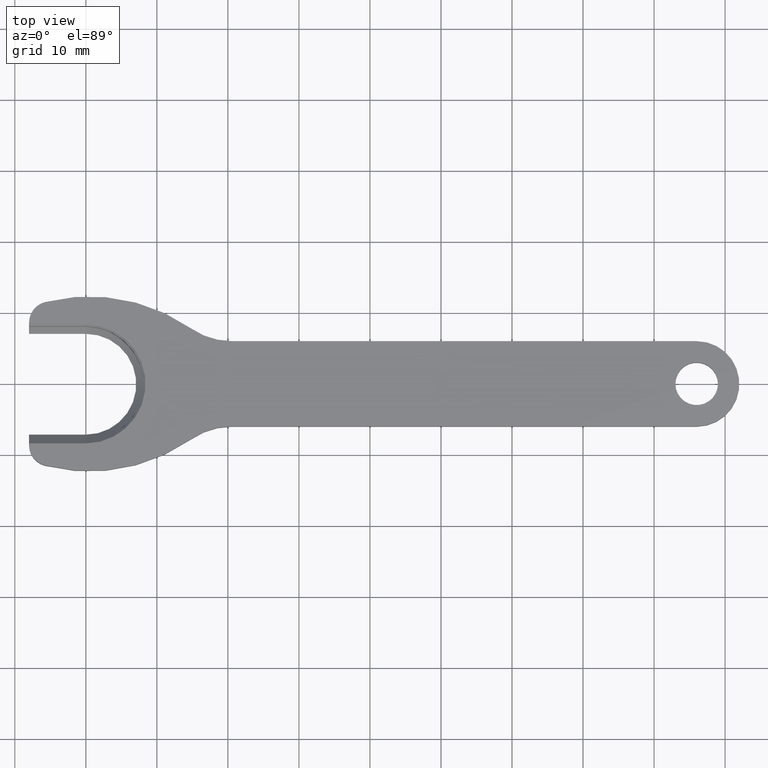
[diagram: clean part render]
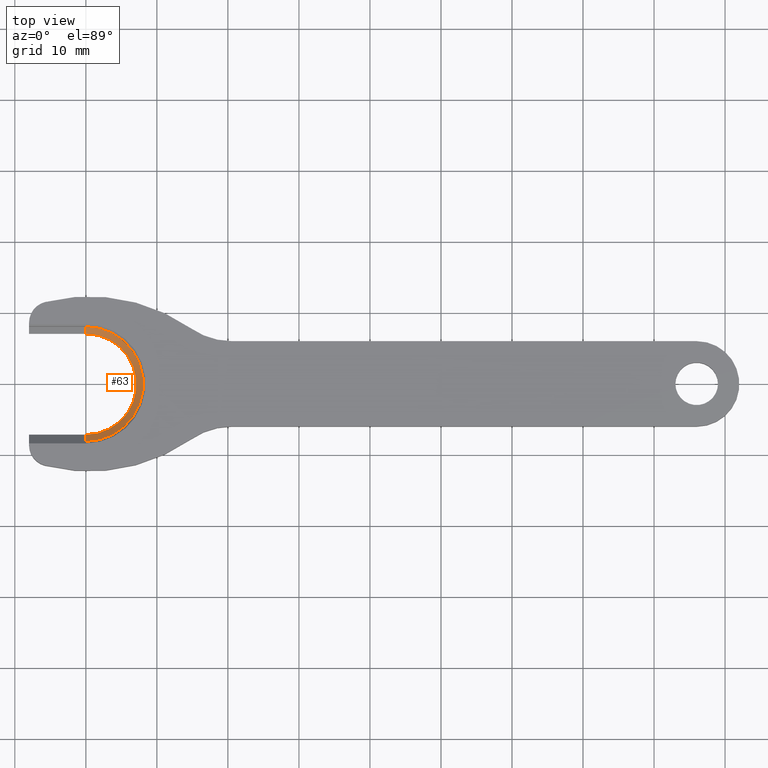
[diagram: same view with one face highlighted and labeled with its STEP entity id]
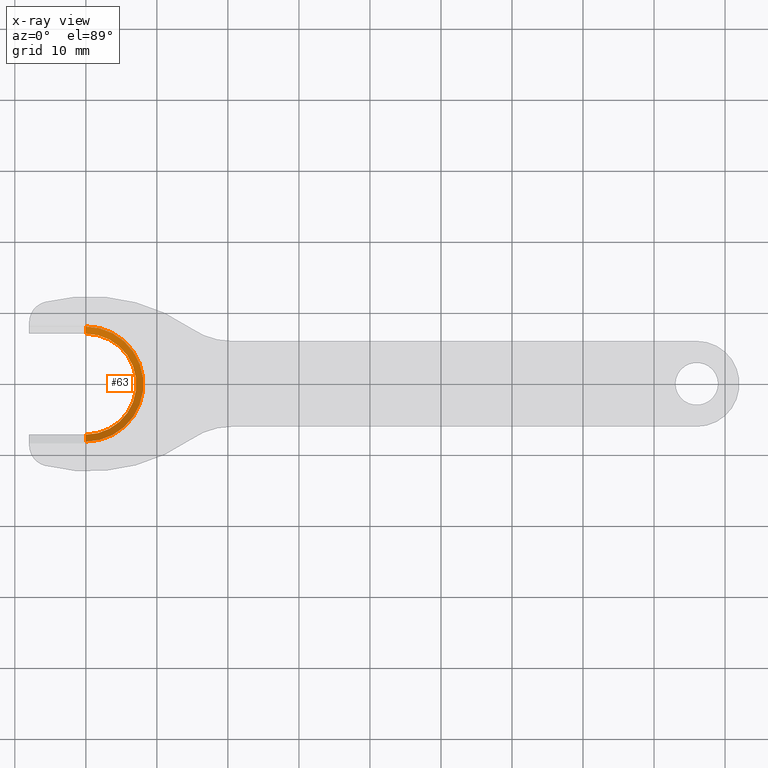
[diagram: x-ray of the same camera — body ghosted, the highlighted face saturated]
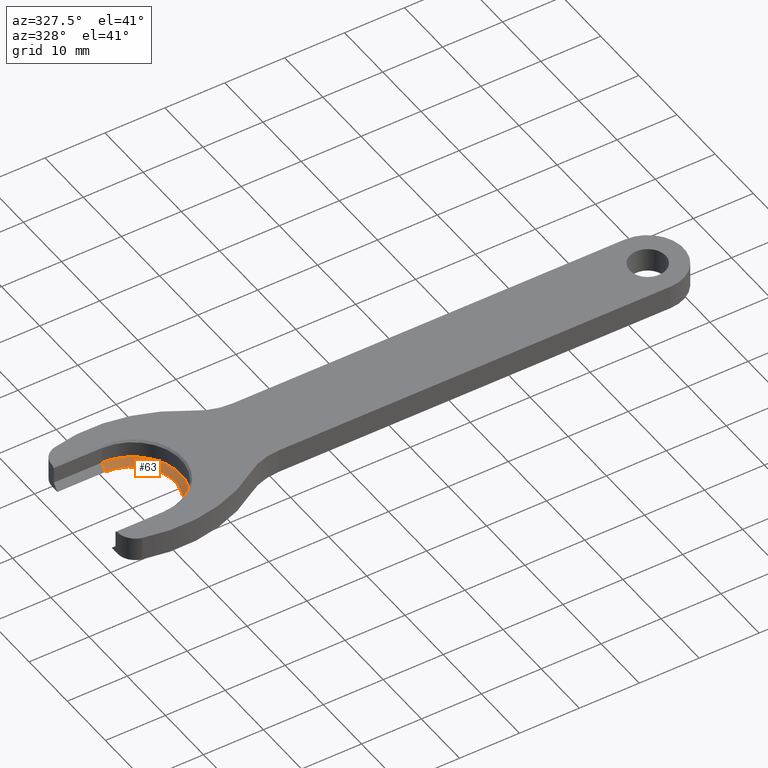
[diagram: same view with one face highlighted and labeled with its STEP entity id]
A machine part, top view. The second image highlights one B-rep face of the part: STEP entity #63.
The next image is the same camera in x-ray: the body ghosted, the highlighted face saturated — about 0% of this face is hidden behind the body in this view.
A second angle (auxiliary view) of the same face is appended — the face is thin or edge-on in the first view.
In plain terms, the highlighted conical surface has half-angle 45 deg.
Its self-contained STEP definition (entity closure, byte-faithful):
#63 = ADVANCED_FACE( '', ( #135 ), #136, .F. );
#135 = FACE_OUTER_BOUND( '', #214, .T. );
#136 = CONICAL_SURFACE( '', #215, 8.10000000000000, 0.785398163397449 );
#214 = EDGE_LOOP( '', ( #337, #338, #339, #340 ) );
#215 = AXIS2_PLACEMENT_3D( '', #341, #342, #343 );
#337 = ORIENTED_EDGE( '', *, *, #477, .T. );
#338 = ORIENTED_EDGE( '', *, *, #497, .F. );
#339 = ORIENTED_EDGE( '', *, *, #513, .F. );
#340 = ORIENTED_EDGE( '', *, *, #514, .F. );
#341 = CARTESIAN_POINT( '', ( 3.30643715532042E-015, 0.000000000000000, -1.00000000000000 ) );
#342 = DIRECTION( '', ( -0.000000000000000, -0.000000000000000, 1.00000000000000 ) );
#343 = DIRECTION( '', ( 1.00000000000000, 0.000000000000000, 0.000000000000000 ) );
#477 = EDGE_CURVE( '', #565, #563, #566, .T. );
#497 = EDGE_CURVE( '', #597, #563, #599, .T. );
#513 = EDGE_CURVE( '', #623, #597, #624, .T. );
#514 = EDGE_CURVE( '', #565, #623, #625, .T. );
#563 = VERTEX_POINT( '', #685 );
#565 = VERTEX_POINT( '', #688 );
#566 = LINE( '', #689, #690 );
#597 = VERTEX_POINT( '', #730 );
#599 = CIRCLE( '', #733, 7.10000000000000 );
#623 = VERTEX_POINT( '', #764 );
#624 = LINE( '', #765, #766 );
#625 = CIRCLE( '', #767, 8.10000000000000 );
#685 = CARTESIAN_POINT( '', ( 4.61064292214125E-015, 7.10000000000000, -2.00000000000000 ) );
#688 = CARTESIAN_POINT( '', ( 0.000000000000000, 8.10000000000000, -1.00000000000000 ) );
#689 = CARTESIAN_POINT( '', ( 4.79433387521461E-015, 8.10000000000000, -1.00000000000000 ) );
#690 = VECTOR( '', #836, 1000.00000000000 );
#730 = CARTESIAN_POINT( '', ( 4.17593638271504E-015, -7.10000000000000, -2.00000000000000 ) );
#733 = AXIS2_PLACEMENT_3D( '', #862, #863, #864 );
#764 = CARTESIAN_POINT( '', ( 1.48789671989419E-015, -8.10000000000000, -1.00000000000000 ) );
#765 = CARTESIAN_POINT( '', ( 4.39277681721214E-015, -8.10000000000000, -1.00000000000000 ) );
#766 = VECTOR( '', #887, 1000.00000000000 );
#767 = AXIS2_PLACEMENT_3D( '', #888, #889, #890 );
#836 = DIRECTION( '', ( -1.29889118560791E-016, -0.707106781186548, -0.707106781186547 ) );
#862 = CARTESIAN_POINT( '', ( 3.30643715532042E-015, 0.000000000000000, -2.00000000000000 ) );
#863 = DIRECTION( '', ( 0.000000000000000, 0.000000000000000, 1.00000000000000 ) );
#864 = DIRECTION( '', ( -1.00000000000000, 0.000000000000000, 0.000000000000000 ) );
#887 = DIRECTION( '', ( -1.53329341668337E-016, 0.707106781186548, -0.707106781186547 ) );
#888 = CARTESIAN_POINT( '', ( 0.000000000000000, 0.000000000000000, -1.00000000000000 ) );
#889 = DIRECTION( '', ( 0.000000000000000, 0.000000000000000, -1.00000000000000 ) );
#890 = DIRECTION( '', ( -1.00000000000000, 0.000000000000000, 0.000000000000000 ) );